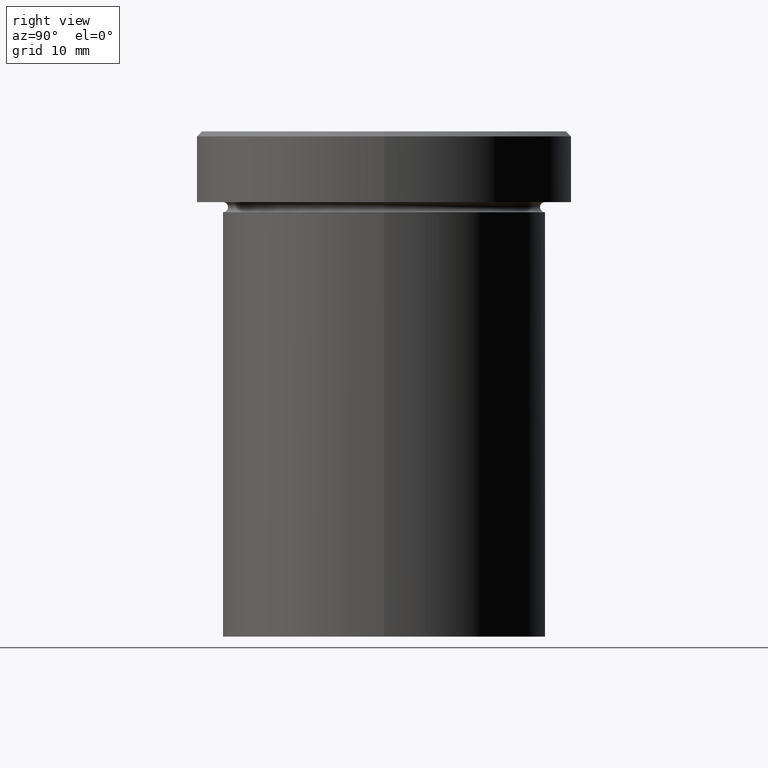
[diagram: clean part render]
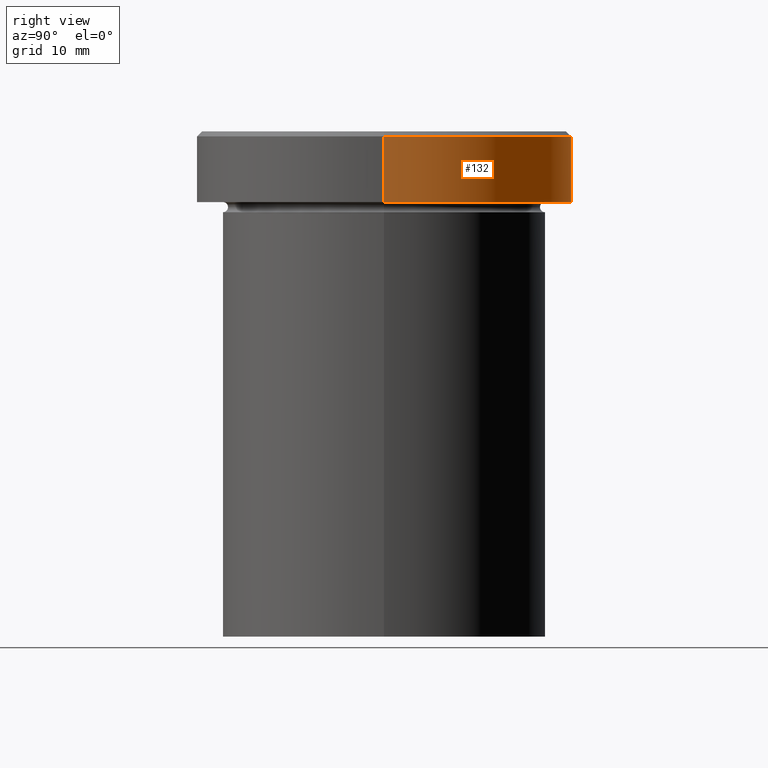
[diagram: same view with one face highlighted and labeled with its STEP entity id]
A machine part, right view. The second image highlights one B-rep face of the part: STEP entity #132.
In plain terms, the highlighted cylindrical surface (partial cylindrical patch) has radius 18.5 mm, axis along (-0, -0, 1).
Its self-contained STEP definition (entity closure, byte-faithful):
#1 = CARTESIAN_POINT ( 'NONE',  ( 0.000000000000000000, 0.000000000000000000, -0.5000000000000004441 ) ) ;
#2 = AXIS2_PLACEMENT_3D ( 'NONE', #148, #382, #142 ) ;
#8 = CARTESIAN_POINT ( 'NONE',  ( -18.50000000000000000, 2.265596578422603396E-15, 0.000000000000000000 ) ) ;
#24 = DIRECTION ( 'NONE',  ( -0.000000000000000000, -0.000000000000000000, 1.000000000000000000 ) ) ;
#51 = VECTOR ( 'NONE', #60, 1000.000000000000000 ) ;
#60 = DIRECTION ( 'NONE',  ( -0.000000000000000000, -0.000000000000000000, 1.000000000000000000 ) ) ;
#61 = EDGE_CURVE ( 'NONE', #104, #133, #336, .T. ) ;
#62 = CARTESIAN_POINT ( 'NONE',  ( 18.50000000000000000, 0.000000000000000000, -0.5000000000000004441 ) ) ;
#64 = CARTESIAN_POINT ( 'NONE',  ( 18.50000000000000000, 0.000000000000000000, 0.000000000000000000 ) ) ;
#89 = DIRECTION ( 'NONE',  ( 1.000000000000000000, 0.000000000000000000, 0.000000000000000000 ) ) ;
#104 = VERTEX_POINT ( 'NONE', #112 ) ;
#111 = CARTESIAN_POINT ( 'NONE',  ( -18.50000000000000000, 2.265596578422603396E-15, -0.5000000000000004441 ) ) ;
#112 = CARTESIAN_POINT ( 'NONE',  ( 18.50000000000000000, 0.000000000000000000, -6.999999999999998224 ) ) ;
#124 = EDGE_CURVE ( 'NONE', #247, #133, #376, .T. ) ;
#129 = ORIENTED_EDGE ( 'NONE', *, *, #61, .F. ) ;
#132 = ADVANCED_FACE ( 'NONE', ( #184 ), #255, .T. ) ;
#133 = VERTEX_POINT ( 'NONE', #62 ) ;
#142 = DIRECTION ( 'NONE',  ( 1.000000000000000000, 0.000000000000000000, 0.000000000000000000 ) ) ;
#147 = EDGE_CURVE ( 'NONE', #360, #247, #217, .T. ) ;
#148 = CARTESIAN_POINT ( 'NONE',  ( 0.000000000000000000, 0.000000000000000000, 0.000000000000000000 ) ) ;
#169 = CARTESIAN_POINT ( 'NONE',  ( -18.50000000000000000, 2.265596578422603396E-15, -6.999999999999998224 ) ) ;
#184 = FACE_OUTER_BOUND ( 'NONE', #253, .T. ) ;
#186 = AXIS2_PLACEMENT_3D ( 'NONE', #1, #350, #89 ) ;
#192 = DIRECTION ( 'NONE',  ( -0.000000000000000000, -0.000000000000000000, 1.000000000000000000 ) ) ;
#217 = LINE ( 'NONE', #8, #51 ) ;
#235 = CARTESIAN_POINT ( 'NONE',  ( 0.000000000000000000, 0.000000000000000000, -6.999999999999998224 ) ) ;
#247 = VERTEX_POINT ( 'NONE', #111 ) ;
#253 = EDGE_LOOP ( 'NONE', ( #324, #339, #397, #129 ) ) ;
#255 = CYLINDRICAL_SURFACE ( 'NONE', #2, 18.50000000000000000 ) ;
#313 = CIRCLE ( 'NONE', #357, 18.50000000000000000 ) ;
#324 = ORIENTED_EDGE ( 'NONE', *, *, #407, .T. ) ;
#336 = LINE ( 'NONE', #64, #361 ) ;
#339 = ORIENTED_EDGE ( 'NONE', *, *, #147, .T. ) ;
#340 = DIRECTION ( 'NONE',  ( 1.000000000000000000, 0.000000000000000000, 0.000000000000000000 ) ) ;
#350 = DIRECTION ( 'NONE',  ( 0.000000000000000000, 0.000000000000000000, -1.000000000000000000 ) ) ;
#357 = AXIS2_PLACEMENT_3D ( 'NONE', #235, #24, #340 ) ;
#360 = VERTEX_POINT ( 'NONE', #169 ) ;
#361 = VECTOR ( 'NONE', #192, 1000.000000000000000 ) ;
#376 = CIRCLE ( 'NONE', #186, 18.50000000000000000 ) ;
#382 = DIRECTION ( 'NONE',  ( -0.000000000000000000, -0.000000000000000000, 1.000000000000000000 ) ) ;
#397 = ORIENTED_EDGE ( 'NONE', *, *, #124, .T. ) ;
#407 = EDGE_CURVE ( 'NONE', #104, #360, #313, .T. ) ;